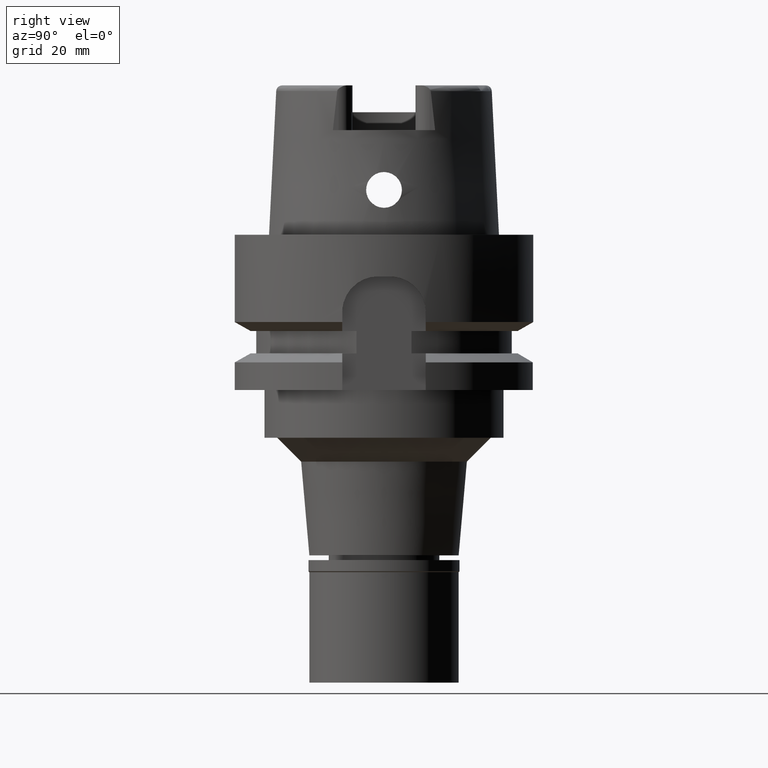
[diagram: clean part render]
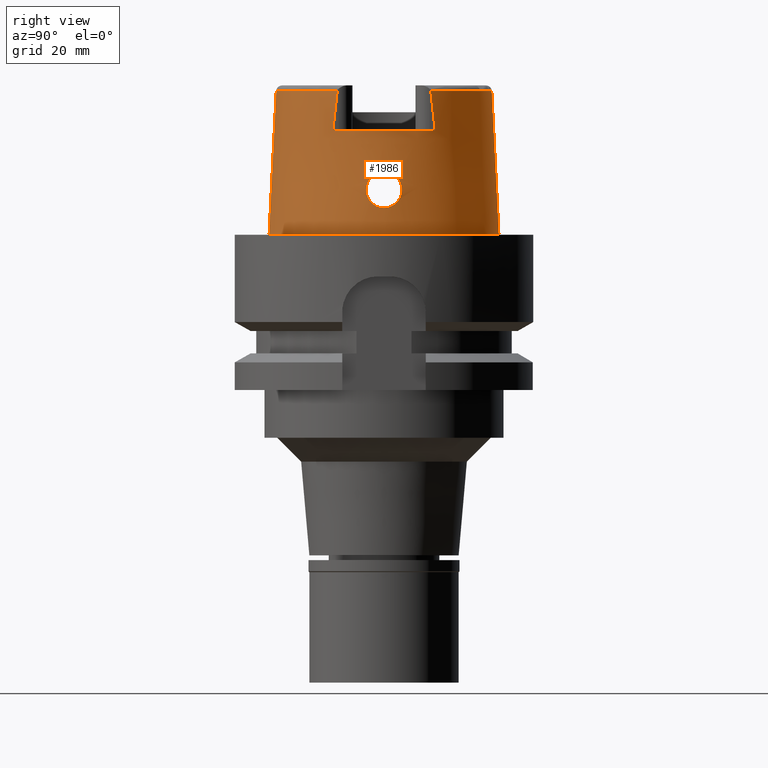
[diagram: same view with one face highlighted and labeled with its STEP entity id]
A machine part, right view. The second image highlights one B-rep face of the part: STEP entity #1986.
In plain terms, the highlighted conical surface has half-angle 2.862 deg.
Its self-contained STEP definition (entity closure, byte-faithful):
#67 = CARTESIAN_POINT ( 'NONE',  ( 18.70767813083188713, -0.9777546348918593200, 10.33702831586141180 ) ) ;
#73 = CARTESIAN_POINT ( 'NONE',  ( 0.0000000000000000000, 0.0000000000000000000, 17.50000000000000000 ) ) ;
#128 = CARTESIAN_POINT ( 'NONE',  ( 18.61432577811525135, -2.712084293876423580, 8.783757100740309909 ) ) ;
#135 = CARTESIAN_POINT ( 'NONE',  ( 16.25997406183000393, 7.831071151783000950, 24.04993752584000077 ) ) ;
#149 = CARTESIAN_POINT ( 'NONE',  ( 18.74581379597854891, -2.705726549813918691, 6.200495721095372836 ) ) ;
#183 = CARTESIAN_POINT ( 'NONE',  ( 18.67855281287377167, -1.621408114585145110, 10.02413059961640762 ) ) ;
#190 = CARTESIAN_POINT ( 'NONE',  ( 18.78318369059967452, 2.543159660644580100, 5.905744331265408320 ) ) ;
#209 = CARTESIAN_POINT ( 'NONE',  ( 18.68231559203935888, -1.551168144440738361, 10.06799337205270817 ) ) ;
#232 = CARTESIAN_POINT ( 'NONE',  ( 18.79115717035590905, -2.505734761877977057, 5.850319594014982805 ) ) ;
#236 = CARTESIAN_POINT ( 'NONE',  ( 19.02499995427999124, 0.1863681564019508685, 4.500000000000000000 ) ) ;
#269 = CARTESIAN_POINT ( 'NONE',  ( 18.63614377029337987, 3.000017655832325492, 7.478636383459796200 ) ) ;
#290 = CARTESIAN_POINT ( 'NONE',  ( 18.96147075517419722, -1.345009312192041451, 4.818010116191469017 ) ) ;
#293 = DIRECTION ( 'NONE',  ( 0.0000000000000000000, -0.04993752584486958745, -0.9987523434327917338 ) ) ;
#298 = CARTESIAN_POINT ( 'NONE',  ( 18.66412177465245037, 1.869895612856077305, 9.846465899096711993 ) ) ;
#321 = CARTESIAN_POINT ( 'NONE',  ( 18.63727611991110678, 2.999780226749087841, 7.457113552333653139 ) ) ;
#343 = CARTESIAN_POINT ( 'NONE',  ( 18.97336495260362810, -1.214107501324754201, 4.756504426520472784 ) ) ;
#352 = CARTESIAN_POINT ( 'NONE',  ( 18.70669539249453450, 2.852361846046820748, 6.546038316771103815 ) ) ;
#370 = DIRECTION ( 'NONE',  ( 0.0000000000000000000, -1.000000000000000000, 0.0000000000000000000 ) ) ;
#405 = CARTESIAN_POINT ( 'NONE',  ( 18.72500050292000040, -7.067677425113999876E-14, 10.50000000000000000 ) ) ;
#417 = VERTEX_POINT ( 'NONE', #5103 ) ;
#460 = VERTEX_POINT ( 'NONE', #3302 ) ;
#530 = CARTESIAN_POINT ( 'NONE',  ( 0.0000000000000000000, 0.0000000000000000000, 24.04993752584000077 ) ) ;
#545 = CARTESIAN_POINT ( 'NONE',  ( 18.85867028008046731, -2.142292553144395484, 5.399825065496658638 ) ) ;
#550 = CARTESIAN_POINT ( 'NONE',  ( 16.26000000000000156, -8.313691546749536698, 19.78297713400948510 ) ) ;
#567 = CARTESIAN_POINT ( 'NONE',  ( 18.65614392328519244, -2.984412033103729378, 7.137391508038697374 ) ) ;
#571 = CARTESIAN_POINT ( 'NONE',  ( 18.99667476822075685, 0.9019903904445828458, 4.638377985060304631 ) ) ;
#583 = EDGE_LOOP ( 'NONE', ( #4858, #5465 ) ) ;
#585 = CARTESIAN_POINT ( 'NONE',  ( 18.81544542515490548, -2.385653362070442540, 5.678353789124705564 ) ) ;
#596 = CARTESIAN_POINT ( 'NONE',  ( 18.80597769339953373, 2.435444867106669964, 5.745599676212406415 ) ) ;
#604 = CONICAL_SURFACE ( 'NONE', #1321, 18.64875220421999913, 0.04995830450907576964 ) ;
#608 = EDGE_CURVE ( 'NONE', #4908, #5136, #788, .T. ) ;
#621 = CARTESIAN_POINT ( 'NONE',  ( 18.84133039971247214, -2.243769958651169016, 5.507575002807301168 ) ) ;
#648 = CARTESIAN_POINT ( 'NONE',  ( 18.65648765456087688, -1.999976692523480093, 9.737038145927360944 ) ) ;
#678 = CARTESIAN_POINT ( 'NONE',  ( 18.87516231386491583, 2.039395937356747179, 5.299473665647343346 ) ) ;
#709 = CARTESIAN_POINT ( 'NONE',  ( 18.73415421604492437, 2.750241179736726771, 6.301330253746368015 ) ) ;
#735 = CARTESIAN_POINT ( 'NONE',  ( 18.66428283896309281, 2.965521512094123846, 7.035856172505480899 ) ) ;
#759 = CARTESIAN_POINT ( 'NONE',  ( 18.69905057652383817, 1.200636647153611403, 10.24977879354877963 ) ) ;
#788 = LINE ( 'NONE', #1595, #5032 ) ;
#821 = CARTESIAN_POINT ( 'NONE',  ( 18.63976046070823145, 2.998780820318370566, 7.411488713268151507 ) ) ;
#853 = CARTESIAN_POINT ( 'NONE',  ( 16.26000000000000156, -8.558800558816001214, 17.50000000000000000 ) ) ;
#877 = CARTESIAN_POINT ( 'NONE',  ( 18.71705332146022016, -0.6602122878577681986, 10.42810079354571862 ) ) ;
#918 = B_SPLINE_CURVE_WITH_KNOTS ( 'NONE', 3,
 ( #5293, #236, #1407, #4463, #3993, #571, #3552, #1930, #2717, #5270, #1827, #1097, #3190, #3629, #4907, #2350, #4042, #2298, #2795, #678, #3523, #2270, #4407, #3964, #1486, #1852, #4826, #596, #190, #1459, #3162, #4883, #2081, #709, #4545, #352, #5378, #735, #5458, #1180, #2056, #821, #321, #269, #4515, #2862, #2434, #2521, #2019, #3301, #1121, #4122, #1965, #3744, #2886, #5434, #3709, #4184, #1627, #2409, #1569, #1156, #5408, #1600, #4990, #3655, #5043, #4099, #298, #4567, #3240, #2827, #5353, #4595, #3769, #1990, #3326, #759, #1543, #4932, #3683 ),
 .UNSPECIFIED., .F., .F.,
 ( 4, 2, 2, 1, 1, 1, 2, 2, 2, 2, 2, 1, 1, 2, 2, 2, 2, 2, 1, 2, 2, 2, 2, 1, 2, 2, 2, 2, 1, 1, 1, 2, 2, 2, 2, 2, 1, 2, 2, 2, 2, 2, 2, 2, 2, 4 ),
 ( 0.0000000000000000000, 0.06249999999999875100, 0.09374999999999815425, 0.1093749999999978073, 0.1171874999999976824, 0.1210937499999976269, 0.1230468749999976408, 0.1249999999999976408, 0.1875000000000011935, 0.2187500000000029976, 0.2343750000000039968, 0.2421875000000043854, 0.2460937500000047462, 0.2480468750000048572, 0.2500000000000049960, 0.2812500000000062172, 0.3125000000000073830, 0.3437500000000086042, 0.3593750000000091593, 0.3671875000000092704, 0.3750000000000093814, 0.4375000000000099365, 0.4687500000000103251, 0.4843750000000105471, 0.4921875000000107692, 0.5000000000000109912, 0.5625000000000132117, 0.5937500000000139888, 0.6093750000000140998, 0.6171875000000139888, 0.6210937500000136557, 0.6230468750000135447, 0.6250000000000133227, 0.6875000000000148770, 0.7187500000000157652, 0.7343750000000160982, 0.7421875000000160982, 0.7460937500000162093, 0.7500000000000162093, 0.7812500000000144329, 0.7968750000000136557, 0.8125000000000127676, 0.8437500000000107692, 0.8593750000000095479, 0.8750000000000083267, 1.000000000000000000 ),
 .UNSPECIFIED. ) ;
#983 = CARTESIAN_POINT ( 'NONE',  ( 18.62095630351473119, -2.570872196683351429, 9.049274318300218667 ) ) ;
#1007 = CARTESIAN_POINT ( 'NONE',  ( 18.64960709494079083, -2.107205375351450805, 9.635377513495319235 ) ) ;
#1032 = CARTESIAN_POINT ( 'NONE',  ( 18.64391027055895123, -3.000212779057117363, 7.324718727427485199 ) ) ;
#1041 = B_SPLINE_CURVE_WITH_KNOTS ( 'NONE', 3,
 ( #405, #3877, #3413, #877, #1291, #2994, #67, #4679, #3469, #5162, #1353, #3052, #4737, #3157, #3957, #3620, #209, #5265, #183, #4844, #3105, #3572, #2736, #5209, #648, #3211, #4402, #1007, #1512, #1398, #1433, #983, #5321, #2322, #128, #3516, #4795, #4038, #2767, #1454, #4873, #2290, #4820, #2687, #3544, #4380, #2245, #5288, #1032, #567, #1899, #1924, #3935, #3987, #1818, #3593, #1063, #1479, #2265, #4430, #149, #4459, #1843, #2346, #5239, #3183, #3135, #232, #2712, #585, #1875, #621, #4013, #4903, #545, #2658, #4351, #3650, #2821, #5010, #290, #4510, #343, #3262, #1175, #2076, #2882, #2428, #4956 ),
 .UNSPECIFIED., .F., .F.,
 ( 4, 2, 2, 1, 1, 1, 2, 2, 2, 2, 1, 2, 2, 2, 1, 1, 2, 2, 2, 2, 1, 1, 2, 2, 2, 2, 1, 2, 2, 2, 2, 1, 1, 1, 2, 2, 2, 2, 1, 2, 2, 2, 1, 1, 2, 2, 2, 2, 1, 1, 2, 2, 4 ),
 ( 0.0000000000000000000, 0.06250000000000266454, 0.09375000000000396905, 0.1093750000000046074, 0.1171875000000048433, 0.1210937500000048433, 0.1230468750000048295, 0.1250000000000048017, 0.1562500000000027478, 0.1718750000000016931, 0.1796875000000013323, 0.1835937500000010270, 0.1875000000000007216, 0.2187499999999970857, 0.2343749999999953926, 0.2421874999999945322, 0.2460937499999943101, 0.2499999999999940881, 0.3124999999999897304, 0.3437499999999877320, 0.3593749999999867883, 0.3671874999999860112, 0.3710937499999859002, 0.3749999999999857891, 0.4374999999999862332, 0.4687499999999864553, 0.4843749999999863998, 0.4921874999999862887, 0.4999999999999861777, 0.5624999999999860112, 0.5937499999999860112, 0.6093749999999861222, 0.6171874999999862332, 0.6210937499999863443, 0.6230468749999865663, 0.6249999999999867883, 0.6562499999999894529, 0.6718749999999906741, 0.6796874999999912292, 0.6835937499999914513, 0.6874999999999917843, 0.7187499999999936717, 0.7343749999999946709, 0.7421874999999950040, 0.7460937499999951150, 0.7499999999999953371, 0.8124999999999968914, 0.8437499999999976685, 0.8593749999999981126, 0.8671874999999982236, 0.8710937499999982236, 0.8749999999999983347, 1.000000000000000000 ),
 .UNSPECIFIED. ) ;
#1048 = ORIENTED_EDGE ( 'NONE', *, *, #1329, .F. ) ;
#1063 = CARTESIAN_POINT ( 'NONE',  ( 18.72479837951139103, -2.785025874962306247, 6.384798423228837727 ) ) ;
#1097 = CARTESIAN_POINT ( 'NONE',  ( 18.98004565735170601, 1.133683082112438179, 4.722449494962831729 ) ) ;
#1121 = CARTESIAN_POINT ( 'NONE',  ( 18.61163137736332018, 2.804706005475000374, 8.565237423798338412 ) ) ;
#1125 = DIRECTION ( 'NONE',  ( 0.0000000000000000000, 0.0000000000000000000, 1.000000000000000000 ) ) ;
#1156 = CARTESIAN_POINT ( 'NONE',  ( 18.64218464927838070, 2.223927375946840090, 9.513683716400301194 ) ) ;
#1175 = CARTESIAN_POINT ( 'NONE',  ( 18.97752832950207491, -1.164499535323680446, 4.735211270953421092 ) ) ;
#1180 = CARTESIAN_POINT ( 'NONE',  ( 18.64797957956300323, 2.991754088782270671, 7.272758947459986523 ) ) ;
#1291 = CARTESIAN_POINT ( 'NONE',  ( 18.71456982725402796, -0.7576600494688154885, 10.40454053098645559 ) ) ;
#1321 = AXIS2_PLACEMENT_3D ( 'NONE', #1699, #3293, #370 ) ;
#1329 = EDGE_CURVE ( 'NONE', #3097, #1467, #4863, .T. ) ;
#1353 = CARTESIAN_POINT ( 'NONE',  ( 18.70165371715204472, -1.136754508917003248, 10.27629837636951038 ) ) ;
#1355 = DIRECTION ( 'NONE',  ( 0.0000000000000000000, 0.0000000000000000000, -1.000000000000000000 ) ) ;
#1359 = ORIENTED_EDGE ( 'NONE', *, *, #3559, .F. ) ;
#1376 = EDGE_CURVE ( 'NONE', #5136, #3663, #3006, .T. ) ;
#1398 = CARTESIAN_POINT ( 'NONE',  ( 18.63814977802644890, -2.280836245975050414, 9.461308415714693609 ) ) ;
#1407 = CARTESIAN_POINT ( 'NONE',  ( 19.02122326280543163, 0.3769118402007813340, 4.517417482422511732 ) ) ;
#1409 = ORIENTED_EDGE ( 'NONE', *, *, #2693, .T. ) ;
#1419 = DIRECTION ( 'NONE',  ( 0.9009559685361676618, -0.4339105239090842447, 0.0000000000000000000 ) ) ;
#1433 = CARTESIAN_POINT ( 'NONE',  ( 18.62998524258405197, -2.410715196610893951, 9.296382838073688148 ) ) ;
#1454 = CARTESIAN_POINT ( 'NONE',  ( 18.61031651320570290, -2.849989285161316666, 8.458100012300031167 ) ) ;
#1459 = CARTESIAN_POINT ( 'NONE',  ( 18.77201099049116095, 2.593848301563777881, 5.989453916598298733 ) ) ;
#1467 = VERTEX_POINT ( 'NONE', #3273 ) ;
#1479 = CARTESIAN_POINT ( 'NONE',  ( 18.72615140845996606, -2.780085165258966651, 6.372538180269738284 ) ) ;
#1486 = CARTESIAN_POINT ( 'NONE',  ( 18.85222285042550183, 2.182719030156006657, 5.439544634039684468 ) ) ;
#1512 = CARTESIAN_POINT ( 'NONE',  ( 18.64910391733409512, -2.114883536098697725, 9.627782606119504649 ) ) ;
#1525 = CARTESIAN_POINT ( 'NONE',  ( 16.26000000000000156, 8.071203088121745139, 21.96587860480569532 ) ) ;
#1543 = CARTESIAN_POINT ( 'NONE',  ( 18.71701591018270960, 0.7599679059048711771, 10.43298520045349953 ) ) ;
#1567 = CARTESIAN_POINT ( 'NONE',  ( 16.26000240863000101, -7.831001008806000030, 24.04998242185999757 ) ) ;
#1569 = CARTESIAN_POINT ( 'NONE',  ( 18.63870351790445312, 2.279409612063862056, 9.451253995039341049 ) ) ;
#1595 = CARTESIAN_POINT ( 'NONE',  ( 0.0000000000000000000, -18.04750486565000145, 24.04993752584000077 ) ) ;
#1600 = CARTESIAN_POINT ( 'NONE',  ( 18.64584513797296239, 2.165912243391857839, 9.575820307060666892 ) ) ;
#1627 = CARTESIAN_POINT ( 'NONE',  ( 18.63037707328410875, 2.414240153004495681, 9.284056029854600212 ) ) ;
#1662 = ORIENTED_EDGE ( 'NONE', *, *, #4776, .T. ) ;
#1699 = CARTESIAN_POINT ( 'NONE',  ( 0.0000000000000000000, 0.0000000000000000000, 12.02496876291999861 ) ) ;
#1715 = CARTESIAN_POINT ( 'NONE',  ( 16.26000000000000156, -8.071105118801538580, 21.96630460796281881 ) ) ;
#1788 = EDGE_CURVE ( 'NONE', #3097, #417, #3360, .T. ) ;
#1818 = CARTESIAN_POINT ( 'NONE',  ( 18.71813026240282696, -2.809009741809649796, 6.446116130310059589 ) ) ;
#1827 = CARTESIAN_POINT ( 'NONE',  ( 18.98062014127857111, 1.126498234311818170, 4.719524899148277441 ) ) ;
#1843 = CARTESIAN_POINT ( 'NONE',  ( 18.76778610880340636, -2.612890857087772023, 6.025007959917945577 ) ) ;
#1852 = CARTESIAN_POINT ( 'NONE',  ( 18.84080521980405010, 2.249351620360816373, 5.512500071027106152 ) ) ;
#1875 = CARTESIAN_POINT ( 'NONE',  ( 18.83269106915243896, -2.292007153802782415, 5.563731055017035132 ) ) ;
#1899 = CARTESIAN_POINT ( 'NONE',  ( 18.67930196515800034, -2.930205666142108978, 6.849273652329281425 ) ) ;
#1924 = CARTESIAN_POINT ( 'NONE',  ( 18.68782257291284310, -2.907057244274906971, 6.752073118876273483 ) ) ;
#1930 = CARTESIAN_POINT ( 'NONE',  ( 18.98608232885068148, 1.055932420726520826, 4.691776232902011401 ) ) ;
#1965 = CARTESIAN_POINT ( 'NONE',  ( 18.61213226735925730, 2.781580281546366606, 8.623766371218129834 ) ) ;
#1972 = CARTESIAN_POINT ( 'NONE',  ( 0.0000000000000000000, -18.04750486565000145, 24.04993752584000077 ) ) ;
#1986 = ADVANCED_FACE ( 'NONE', ( #5397, #4585 ), #604, .T. ) ;
#1990 = CARTESIAN_POINT ( 'NONE',  ( 18.69314898553780324, 1.335142722837396656, 10.18698714412036743 ) ) ;
#2019 = CARTESIAN_POINT ( 'NONE',  ( 18.61124948232845711, 2.858532183714601604, 8.411737080610189210 ) ) ;
#2056 = CARTESIAN_POINT ( 'NONE',  ( 18.64364019119661009, 2.996492191562026619, 7.342669283276596737 ) ) ;
#2076 = CARTESIAN_POINT ( 'NONE',  ( 18.97818221172018127, -1.156563969814408566, 4.731873803352695695 ) ) ;
#2081 = CARTESIAN_POINT ( 'NONE',  ( 18.73946018948490533, 2.729705879027742643, 6.255274519701316649 ) ) ;
#2109 = DIRECTION ( 'NONE',  ( 0.8848979041389121170, 0.4657850354515061242, 0.0000000000000000000 ) ) ;
#2245 = CARTESIAN_POINT ( 'NONE',  ( 18.63254186737794882, -2.999661867763949719, 7.550905247855007829 ) ) ;
#2265 = CARTESIAN_POINT ( 'NONE',  ( 18.72697726415487907, -2.777052530200650349, 6.365096324412957252 ) ) ;
#2270 = CARTESIAN_POINT ( 'NONE',  ( 18.86691694280699139, 2.091777039696135709, 5.349529780462582984 ) ) ;
#2290 = CARTESIAN_POINT ( 'NONE',  ( 18.61681548977047029, -2.962899843475978123, 7.980344452754254192 ) ) ;
#2298 = CARTESIAN_POINT ( 'NONE',  ( 18.88936150855821339, 1.944519487539351221, 5.214827262045150569 ) ) ;
#2322 = CARTESIAN_POINT ( 'NONE',  ( 18.61557743035313450, -2.682191319366286741, 8.844604906042766501 ) ) ;
#2346 = CARTESIAN_POINT ( 'NONE',  ( 18.77676725711796735, -2.572658298386796272, 5.956585176603150344 ) ) ;
#2350 = CARTESIAN_POINT ( 'NONE',  ( 18.91277385822877832, 1.775368537190523233, 5.079322827347870550 ) ) ;
#2365 = VERTEX_POINT ( 'NONE', #5060 ) ;
#2388 = AXIS2_PLACEMENT_3D ( 'NONE', #530, #3561, #1419 ) ;
#2409 = CARTESIAN_POINT ( 'NONE',  ( 18.63651941685184710, 2.314484698931371209, 9.409453701172799001 ) ) ;
#2428 = CARTESIAN_POINT ( 'NONE',  ( 19.02499995427999480, -0.3746611093530464176, 4.500000000000000000 ) ) ;
#2434 = CARTESIAN_POINT ( 'NONE',  ( 18.61303688724091643, 2.925165706114826403, 8.173044413778011830 ) ) ;
#2495 = LINE ( 'NONE', #4185, #2751 ) ;
#2521 = CARTESIAN_POINT ( 'NONE',  ( 18.61188476896358779, 2.901485534477283856, 8.268937377935339228 ) ) ;
#2654 = ORIENTED_EDGE ( 'NONE', *, *, #1376, .T. ) ;
#2658 = CARTESIAN_POINT ( 'NONE',  ( 18.85991447116015607, -2.134861650417383849, 5.392261026926568945 ) ) ;
#2687 = CARTESIAN_POINT ( 'NONE',  ( 18.62440267556026896, -2.990677654088376602, 7.741145953990780093 ) ) ;
#2693 = EDGE_CURVE ( 'NONE', #460, #1467, #4606, .T. ) ;
#2712 = CARTESIAN_POINT ( 'NONE',  ( 18.80399235198655461, -2.444310855713192954, 5.757851521191382105 ) ) ;
#2717 = CARTESIAN_POINT ( 'NONE',  ( 18.98293262717170293, 1.097131851352991072, 4.707764067085573600 ) ) ;
#2736 = CARTESIAN_POINT ( 'NONE',  ( 18.66679118543052596, -1.829976368281366117, 9.879262514063563927 ) ) ;
#2751 = VECTOR ( 'NONE', #3384, 999.9999999999998863 ) ;
#2767 = CARTESIAN_POINT ( 'NONE',  ( 18.61247050534075598, -2.768564400595106889, 8.655512419233975407 ) ) ;
#2771 = CARTESIAN_POINT ( 'NONE',  ( 0.0000000000000000000, 19.24999954279000036, -4.547473508865000658E-13 ) ) ;
#2795 = CARTESIAN_POINT ( 'NONE',  ( 18.87995507429912223, 2.007805309087939971, 5.270760115930461787 ) ) ;
#2821 = CARTESIAN_POINT ( 'NONE',  ( 18.94039023252013365, -1.550258364307168124, 4.929692705809868514 ) ) ;
#2827 = CARTESIAN_POINT ( 'NONE',  ( 18.67349187953652390, 1.711107060095725441, 9.964625818041588090 ) ) ;
#2834 = DIRECTION ( 'NONE',  ( 0.0000000000000000000, 1.000000000000000000, 0.0000000000000000000 ) ) ;
#2839 = CIRCLE ( 'NONE', #2388, 18.04750486565000855 ) ;
#2862 = CARTESIAN_POINT ( 'NONE',  ( 18.61867902363466953, 2.981648281108711274, 7.884845803346807180 ) ) ;
#2882 = CARTESIAN_POINT ( 'NONE',  ( 19.00971252813801371, -0.7672993738112471318, 4.571174796440311994 ) ) ;
#2886 = CARTESIAN_POINT ( 'NONE',  ( 18.61232550164468336, 2.773931837940799117, 8.642509041851372587 ) ) ;
#2994 = CARTESIAN_POINT ( 'NONE',  ( 18.71009953768290401, -0.9043114213905317778, 10.36091278525205439 ) ) ;
#3006 = CIRCLE ( 'NONE', #4857, 19.24999954279000036 ) ;
#3021 = EDGE_LOOP ( 'NONE', ( #1359, #1662, #3307, #2654, #3698, #1409, #1048, #4043 ) ) ;
#3022 = VERTEX_POINT ( 'NONE', #1567 ) ;
#3052 = CARTESIAN_POINT ( 'NONE',  ( 18.70135114459865378, -1.144242052868744253, 10.27321767680948916 ) ) ;
#3053 = CARTESIAN_POINT ( 'NONE',  ( 0.0000000000000000000, -19.24999954279000036, -4.547473508865000658E-13 ) ) ;
#3097 = VERTEX_POINT ( 'NONE', #4905 ) ;
#3105 = CARTESIAN_POINT ( 'NONE',  ( 18.67650030062953093, -1.658733824466751772, 9.999750731297309514 ) ) ;
#3135 = CARTESIAN_POINT ( 'NONE',  ( 18.78932475304149818, -2.514439927068083946, 5.863605797947422538 ) ) ;
#3157 = CARTESIAN_POINT ( 'NONE',  ( 18.69444404120556769, -1.306593987818134295, 10.20231508953803790 ) ) ;
#3162 = CARTESIAN_POINT ( 'NONE',  ( 18.75558839226552976, 2.664298063077950474, 6.120157454098304584 ) ) ;
#3183 = CARTESIAN_POINT ( 'NONE',  ( 18.78611917093514450, -2.529531159962630227, 5.887031853345034982 ) ) ;
#3190 = CARTESIAN_POINT ( 'NONE',  ( 18.96796763205718150, 1.283693018334156610, 4.783964237409326081 ) ) ;
#3211 = CARTESIAN_POINT ( 'NONE',  ( 18.65247494047518728, -2.063046725428910211, 9.678279048015632213 ) ) ;
#3240 = CARTESIAN_POINT ( 'NONE',  ( 18.67107450753761810, 1.752451883743840977, 9.935431011907974508 ) ) ;
#3246 = CARTESIAN_POINT ( 'NONE',  ( 0.0000000000000000000, 0.0000000000000000000, 24.04993752584000077 ) ) ;
#3262 = CARTESIAN_POINT ( 'NONE',  ( 18.97587898000194784, -1.184311157013217874, 4.743639543273397763 ) ) ;
#3273 = CARTESIAN_POINT ( 'NONE',  ( 16.25997406183000393, 7.831071151783000950, 24.04993752584000077 ) ) ;
#3293 = DIRECTION ( 'NONE',  ( 0.0000000000000000000, 0.0000000000000000000, -1.000000000000000000 ) ) ;
#3301 = CARTESIAN_POINT ( 'NONE',  ( 18.61120506170610156, 2.835198468954990059, 8.482876221857802435 ) ) ;
#3302 = CARTESIAN_POINT ( 'NONE',  ( 0.0000000000000000000, 18.04750486565000145, 24.04993752584000077 ) ) ;
#3307 = ORIENTED_EDGE ( 'NONE', *, *, #608, .T. ) ;
#3326 = CARTESIAN_POINT ( 'NONE',  ( 18.69716906994819183, 1.244750657859569287, 10.23003695996445472 ) ) ;
#3344 = CARTESIAN_POINT ( 'NONE',  ( 18.72500050292000040, -7.067677425113999876E-14, 10.50000000000000000 ) ) ;
#3360 = CIRCLE ( 'NONE', #5224, 18.37500114300999599 ) ;
#3384 = DIRECTION ( 'NONE',  ( 0.0000000000000000000, 0.04993752584486958745, -0.9987523434327917338 ) ) ;
#3413 = CARTESIAN_POINT ( 'NONE',  ( 18.72301370755505090, -0.3706905333699436755, 10.48348900069628797 ) ) ;
#3469 = CARTESIAN_POINT ( 'NONE',  ( 18.70287024126708886, -1.106208837071965601, 10.28865653568223593 ) ) ;
#3516 = CARTESIAN_POINT ( 'NONE',  ( 18.61321747105639446, -2.743750497253933940, 8.713533593413593792 ) ) ;
#3523 = CARTESIAN_POINT ( 'NONE',  ( 18.86941405924183002, 2.076091994233037585, 5.334310235574236891 ) ) ;
#3544 = CARTESIAN_POINT ( 'NONE',  ( 18.62716682226679410, -2.995864699141326692, 7.669590548337137825 ) ) ;
#3552 = CARTESIAN_POINT ( 'NONE',  ( 18.99207192548611900, 0.9732540253715532552, 4.661480766858410618 ) ) ;
#3559 = EDGE_CURVE ( 'NONE', #3022, #417, #5361, .T. ) ;
#3561 = DIRECTION ( 'NONE',  ( 0.0000000000000000000, 0.0000000000000000000, -1.000000000000000000 ) ) ;
#3572 = CARTESIAN_POINT ( 'NONE',  ( 18.67136341197396021, -1.750821835535106841, 9.938098956053837085 ) ) ;
#3593 = CARTESIAN_POINT ( 'NONE',  ( 18.72277822585959228, -2.792367099058005397, 6.403190775824573855 ) ) ;
#3620 = CARTESIAN_POINT ( 'NONE',  ( 18.68589299256335678, -1.482255069383155099, 10.10878711171021926 ) ) ;
#3629 = CARTESIAN_POINT ( 'NONE',  ( 18.95243509319690034, 1.442772802337751292, 4.862414998900480789 ) ) ;
#3632 = AXIS2_PLACEMENT_3D ( 'NONE', #3246, #4522, #2834 ) ;
#3634 = CARTESIAN_POINT ( 'NONE',  ( 16.26000000000000156, 8.558800558816001214, 17.50000000000000000 ) ) ;
#3650 = CARTESIAN_POINT ( 'NONE',  ( 18.91099728296620341, -1.799129004858513570, 5.091212513615582580 ) ) ;
#3655 = CARTESIAN_POINT ( 'NONE',  ( 18.64784689577132681, 2.134303118723702486, 9.608293370494042307 ) ) ;
#3663 = VERTEX_POINT ( 'NONE', #2771 ) ;
#3683 = CARTESIAN_POINT ( 'NONE',  ( 18.72500050292000040, -7.067677425113999876E-14, 10.50000000000000000 ) ) ;
#3698 = ORIENTED_EDGE ( 'NONE', *, *, #5042, .F. ) ;
#3709 = CARTESIAN_POINT ( 'NONE',  ( 18.61782377994402538, 2.631620908746968635, 8.953544621835142436 ) ) ;
#3744 = CARTESIAN_POINT ( 'NONE',  ( 18.61225009099083394, 2.776834162145586316, 8.635443418101290902 ) ) ;
#3750 = EDGE_CURVE ( 'NONE', #2365, #5431, #918, .T. ) ;
#3769 = CARTESIAN_POINT ( 'NONE',  ( 18.69109146678247058, 1.379432512235710284, 10.16450581209323190 ) ) ;
#3877 = CARTESIAN_POINT ( 'NONE',  ( 18.72500050291998974, -0.1815358105405240341, 10.49999999999999467 ) ) ;
#3935 = CARTESIAN_POINT ( 'NONE',  ( 18.70180537524097275, -2.863985700885955499, 6.605472183009127640 ) ) ;
#3955 = EDGE_CURVE ( 'NONE', #5431, #2365, #1041, .T. ) ;
#3957 = CARTESIAN_POINT ( 'NONE',  ( 18.68813668537625716, -1.437379107836757708, 10.13369796548337654 ) ) ;
#3964 = CARTESIAN_POINT ( 'NONE',  ( 18.86426999286777928, 2.108275436550484105, 5.365705567323122871 ) ) ;
#3987 = CARTESIAN_POINT ( 'NONE',  ( 18.70909724907901506, -2.840363867535898645, 6.531974367591558028 ) ) ;
#3993 = CARTESIAN_POINT ( 'NONE',  ( 19.00517232403851864, 0.7591477554574648234, 4.595940157511987145 ) ) ;
#4013 = CARTESIAN_POINT ( 'NONE',  ( 18.85143850868134052, -2.185121329567341508, 5.444200930069197142 ) ) ;
#4038 = CARTESIAN_POINT ( 'NONE',  ( 18.61256828068219349, -2.765113486720086389, 8.663728597550999666 ) ) ;
#4042 = CARTESIAN_POINT ( 'NONE',  ( 18.89539368258517982, 1.902190749302669959, 5.179531683575786083 ) ) ;
#4043 = ORIENTED_EDGE ( 'NONE', *, *, #1788, .T. ) ;
#4099 = CARTESIAN_POINT ( 'NONE',  ( 18.65727420301471895, 1.983597433488633488, 9.752773511977157028 ) ) ;
#4122 = CARTESIAN_POINT ( 'NONE',  ( 18.61196407012109688, 2.788640913747814309, 8.606236614994154266 ) ) ;
#4184 = CARTESIAN_POINT ( 'NONE',  ( 18.62682879035903838, 2.473444373562834642, 9.200478778063811092 ) ) ;
#4185 = CARTESIAN_POINT ( 'NONE',  ( 0.0000000000000000000, 18.04750486565000145, 24.04993752584000077 ) ) ;
#4188 = DIRECTION ( 'NONE',  ( 0.0000000000000000000, -1.000000000000000000, 0.0000000000000000000 ) ) ;
#4351 = CARTESIAN_POINT ( 'NONE',  ( 18.88798838128937163, -1.966068402763167411, 5.222891446431101592 ) ) ;
#4380 = CARTESIAN_POINT ( 'NONE',  ( 18.63033762811464911, -2.998481872889408262, 7.598331699517105520 ) ) ;
#4387 = CARTESIAN_POINT ( 'NONE',  ( 0.0000000000000000000, 0.0000000000000000000, -4.547473508865000658E-13 ) ) ;
#4402 = CARTESIAN_POINT ( 'NONE',  ( 18.65075434759130957, -2.089605546268589631, 9.652603140398863246 ) ) ;
#4407 = CARTESIAN_POINT ( 'NONE',  ( 18.86524473657503620, 2.102223584611063956, 5.359740821951175072 ) ) ;
#4430 = CARTESIAN_POINT ( 'NONE',  ( 18.73609883557508127, -2.743426362756541170, 6.283220837225175437 ) ) ;
#4459 = CARTESIAN_POINT ( 'NONE',  ( 18.76208116459568842, -2.637554182467774400, 6.069711631222014070 ) ) ;
#4463 = CARTESIAN_POINT ( 'NONE',  ( 19.00989318838172082, 0.6635018890496056088, 4.572675198139397601 ) ) ;
#4510 = CARTESIAN_POINT ( 'NONE',  ( 18.96721886663727474, -1.284158092673378659, 4.788107826529375721 ) ) ;
#4515 = CARTESIAN_POINT ( 'NONE',  ( 18.62535482331283987, 2.999850469075376669, 7.692059589447598711 ) ) ;
#4522 = DIRECTION ( 'NONE',  ( 0.0000000000000000000, 0.0000000000000000000, -1.000000000000000000 ) ) ;
#4545 = CARTESIAN_POINT ( 'NONE',  ( 18.73166466242242123, 2.759695672751776740, 6.323225291071368659 ) ) ;
#4567 = CARTESIAN_POINT ( 'NONE',  ( 18.66642533078116628, 1.831227979163942310, 9.876765850252725798 ) ) ;
#4585 = FACE_BOUND ( 'NONE', #583, .T. ) ;
#4595 = CARTESIAN_POINT ( 'NONE',  ( 18.68477648086606635, 1.509501520863512747, 10.09443756380392898 ) ) ;
#4606 = CIRCLE ( 'NONE', #3632, 18.04750486565000145 ) ;
#4679 = CARTESIAN_POINT ( 'NONE',  ( 18.70452719755779825, -1.063415008915627569, 10.30541469989642600 ) ) ;
#4737 = CARTESIAN_POINT ( 'NONE',  ( 18.69808398161266538, -1.224559771114857476, 10.23991787259578601 ) ) ;
#4744 = CARTESIAN_POINT ( 'NONE',  ( 16.26000240863000101, -7.831001008806000030, 24.04998242185999757 ) ) ;
#4776 = EDGE_CURVE ( 'NONE', #3022, #4908, #2839, .T. ) ;
#4795 = CARTESIAN_POINT ( 'NONE',  ( 18.61281790100657929, -2.756655658774346040, 8.683624274061120474 ) ) ;
#4820 = CARTESIAN_POINT ( 'NONE',  ( 18.61941659433564311, -2.976808650599855444, 7.884482853808290059 ) ) ;
#4826 = CARTESIAN_POINT ( 'NONE',  ( 18.81781167132725585, 2.375104896931352627, 5.664621181265350636 ) ) ;
#4844 = CARTESIAN_POINT ( 'NONE',  ( 18.67725441538010855, -1.645107104032420109, 10.00874912540582784 ) ) ;
#4857 = AXIS2_PLACEMENT_3D ( 'NONE', #4387, #1125, #4188 ) ;
#4858 = ORIENTED_EDGE ( 'NONE', *, *, #3750, .F. ) ;
#4863 = B_SPLINE_CURVE_WITH_KNOTS ( 'NONE', 3,
 ( #3634, #5332, #1525, #135 ),
 .UNSPECIFIED., .F., .F.,
 ( 4, 4 ),
 ( 0.0000000000000000000, 1.000000000000000000 ),
 .UNSPECIFIED. ) ;
#4873 = CARTESIAN_POINT ( 'NONE',  ( 18.61118102482863179, -2.906736803922516543, 8.267402277667555310 ) ) ;
#4883 = CARTESIAN_POINT ( 'NONE',  ( 18.74746120613699318, 2.698126983881973473, 6.186792154906999741 ) ) ;
#4903 = CARTESIAN_POINT ( 'NONE',  ( 18.85577674609276144, -2.159489509628885084, 5.417511777565876763 ) ) ;
#4905 = CARTESIAN_POINT ( 'NONE',  ( 16.26000000000000156, 8.558800558816001214, 17.50000000000000000 ) ) ;
#4907 = CARTESIAN_POINT ( 'NONE',  ( 18.92340551340810606, 1.691057796260604151, 5.020093645114013015 ) ) ;
#4908 = VERTEX_POINT ( 'NONE', #1972 ) ;
#4932 = CARTESIAN_POINT ( 'NONE',  ( 18.72500050291999685, 0.3638041719586654343, 10.50000000000000000 ) ) ;
#4956 = CARTESIAN_POINT ( 'NONE',  ( 19.02499995427999835, 0.0000000000000000000, 4.500000000000000000 ) ) ;
#4990 = CARTESIAN_POINT ( 'NONE',  ( 18.64710800499511478, 2.145961199306369860, 9.596438962705985176 ) ) ;
#5010 = CARTESIAN_POINT ( 'NONE',  ( 18.94933448187789082, -1.467511957724292326, 4.881815934493015874 ) ) ;
#5032 = VECTOR ( 'NONE', #293, 999.9999999999998863 ) ;
#5042 = EDGE_CURVE ( 'NONE', #460, #3663, #2495, .T. ) ;
#5043 = CARTESIAN_POINT ( 'NONE',  ( 18.65279328425419791, 2.056328560426250895, 9.686586409451436452 ) ) ;
#5060 = CARTESIAN_POINT ( 'NONE',  ( 19.02499995427999835, 0.0000000000000000000, 4.500000000000000000 ) ) ;
#5103 = CARTESIAN_POINT ( 'NONE',  ( 16.26000000000000156, -8.558800558816001214, 17.50000000000000000 ) ) ;
#5136 = VERTEX_POINT ( 'NONE', #3053 ) ;
#5162 = CARTESIAN_POINT ( 'NONE',  ( 18.70214265507388873, -1.124537944686315516, 10.28126911663287046 ) ) ;
#5209 = CARTESIAN_POINT ( 'NONE',  ( 18.65992369067428669, -1.944080724935338900, 9.785383127565044248 ) ) ;
#5224 = AXIS2_PLACEMENT_3D ( 'NONE', #73, #1355, #2109 ) ;
#5239 = CARTESIAN_POINT ( 'NONE',  ( 18.78136376427597654, -2.551732583375045937, 5.922032761484400609 ) ) ;
#5265 = CARTESIAN_POINT ( 'NONE',  ( 18.68047392645119231, -1.586023546436819087, 10.04673953779684759 ) ) ;
#5270 = CARTESIAN_POINT ( 'NONE',  ( 18.98154956144616179, 1.114756196476279326, 4.714796474082771027 ) ) ;
#5288 = CARTESIAN_POINT ( 'NONE',  ( 18.63375308332952685, -2.999970966242344605, 7.525965467789821339 ) ) ;
#5293 = CARTESIAN_POINT ( 'NONE',  ( 19.02499995427999835, 0.0000000000000000000, 4.500000000000000000 ) ) ;
#5321 = CARTESIAN_POINT ( 'NONE',  ( 18.61848296784065937, -2.618514933960584656, 8.966911738577987734 ) ) ;
#5332 = CARTESIAN_POINT ( 'NONE',  ( 16.26000000000000156, 8.313781022071411897, 19.78261985322236072 ) ) ;
#5353 = CARTESIAN_POINT ( 'NONE',  ( 18.68037658405457790, 1.592474636346078443, 10.04422791999082598 ) ) ;
#5361 = B_SPLINE_CURVE_WITH_KNOTS ( 'NONE', 3,
 ( #4744, #1715, #550, #853 ),
 .UNSPECIFIED., .F., .F.,
 ( 4, 4 ),
 ( 0.0000000000000000000, 1.000000000000000000 ),
 .UNSPECIFIED. ) ;
#5378 = CARTESIAN_POINT ( 'NONE',  ( 18.68776916413571598, 2.910121946833626794, 6.744897636254282070 ) ) ;
#5397 = FACE_OUTER_BOUND ( 'NONE', #3021, .T. ) ;
#5408 = CARTESIAN_POINT ( 'NONE',  ( 18.64397645991410002, 2.195469096358685590, 9.544830484527015102 ) ) ;
#5431 = VERTEX_POINT ( 'NONE', #3344 ) ;
#5434 = CARTESIAN_POINT ( 'NONE',  ( 18.61400689081434479, 2.711154388818202587, 8.794213347115039880 ) ) ;
#5458 = CARTESIAN_POINT ( 'NONE',  ( 18.65727123346650274, 2.978798970011307556, 7.131651264316960948 ) ) ;
#5465 = ORIENTED_EDGE ( 'NONE', *, *, #3955, .F. ) ;